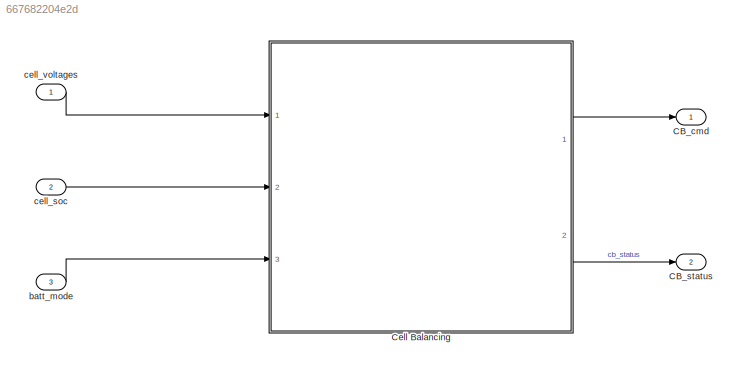
MODEL slx_667682204e2d
KIND model
CONFIG AbsTol = auto
CONFIG FixedStep = 0.01
CONFIG MaxStep = auto
CONFIG MinStep = auto
CONFIG RelTol = 1e-3
CONFIG SampleTimeConstraint = Unconstrained
CONFIG Solver = FixedStepAuto
CONFIG SolverMode = Auto
CONFIG SolverName = FixedStepAuto
CONFIG StartTime = 0.0
CONFIG StopTime = inf
BLOCK [Outport] CB_cmd
  IconDisplay = Port number
BLOCK [Outport] CB_status
  IconDisplay = Port number
  Port = 2
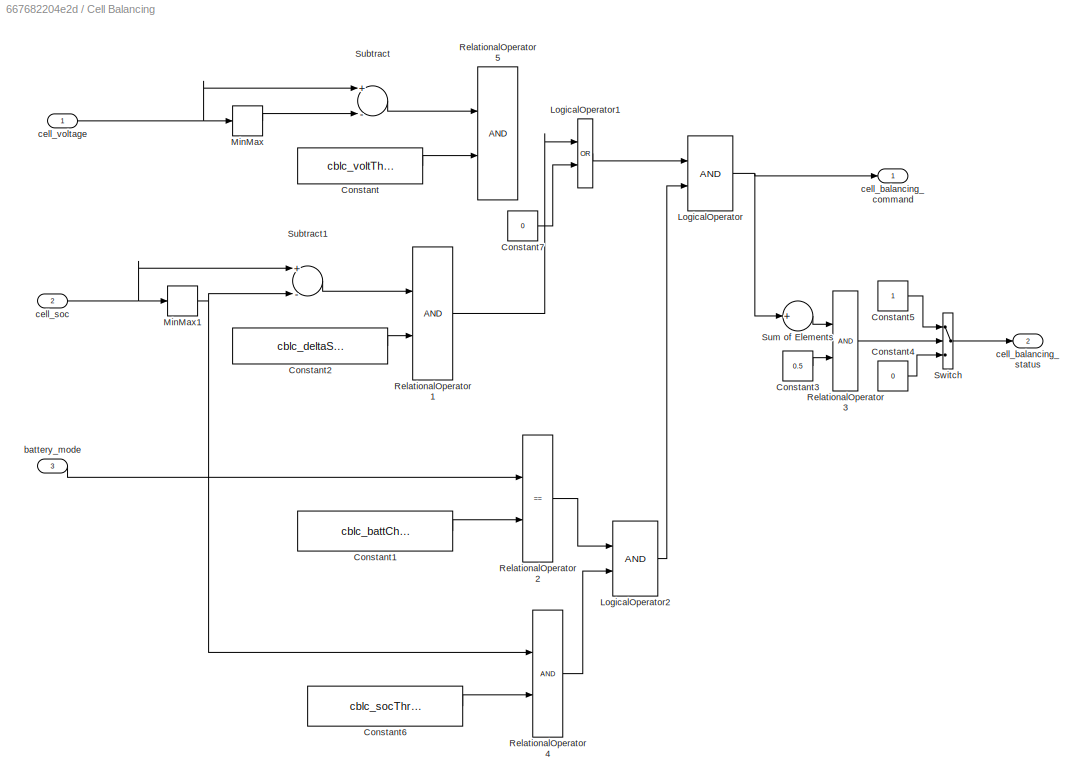
BLOCK [SubSystem] Cell Balancing
  Ports = [3, 2]
  RequestExecContextInheritance = off
  TreatAsAtomicUnit = on
  Variant = off
BLOCK [Constant] Cell Balancing/Constant
  Value = cblc_voltThreshBalance
BLOCK [Constant] Cell Balancing/Constant1
  Value = cblc_battChargingMode
BLOCK [Constant] Cell Balancing/Constant2
  Value = cblc_deltaSocThreshBalance
BLOCK [Constant] Cell Balancing/Constant3
  Value = 0.5
BLOCK [Constant] Cell Balancing/Constant4
  OutDataTypeStr = boolean
  Value = 0
BLOCK [Constant] Cell Balancing/Constant5
  OutDataTypeStr = boolean
BLOCK [Constant] Cell Balancing/Constant6
  Value = cblc_socThreshBalance
BLOCK [Constant] Cell Balancing/Constant7
  Value = 0
BLOCK [Logic] Cell Balancing/LogicalOperator
  AllPortsSameDT = off
  OutDataTypeStr = boolean
  Ports = [2, 1]
BLOCK [Logic] Cell Balancing/LogicalOperator1
  AllPortsSameDT = off
  Operator = OR
  OutDataTypeStr = boolean
  Ports = [2, 1]
BLOCK [Logic] Cell Balancing/LogicalOperator2
  AllPortsSameDT = off
  OutDataTypeStr = boolean
  Ports = [2, 1]
BLOCK [MinMax] Cell Balancing/MinMax
  InputSameDT = off
  Ports = [1, 1]
  SaturateOnIntegerOverflow = off
BLOCK [MinMax] Cell Balancing/MinMax1
  InputSameDT = off
  Ports = [1, 1]
  SaturateOnIntegerOverflow = off
BLOCK [RelationalOperator] Cell Balancing/RelationalOperator1
  InputSameDT = off
  OutDataTypeStr = boolean
  Ports = [2, 1]
BLOCK [RelationalOperator] Cell Balancing/RelationalOperator2
  InputSameDT = off
  Operator = ==
  OutDataTypeStr = boolean
  Ports = [2, 1]
BLOCK [RelationalOperator] Cell Balancing/RelationalOperator3
  InputSameDT = off
  OutDataTypeStr = boolean
  Ports = [2, 1]
BLOCK [RelationalOperator] Cell Balancing/RelationalOperator4
  InputSameDT = off
  OutDataTypeStr = boolean
  Ports = [2, 1]
BLOCK [RelationalOperator] Cell Balancing/RelationalOperator5
  InputSameDT = off
  OutDataTypeStr = boolean
  Ports = [2, 1]
BLOCK [Sum] Cell Balancing/Subtract
  InputSameDT = off
  Inputs = +-
  OutDataTypeStr = Inherit: Inherit via internal rule
  Ports = [2, 1]
  SaturateOnIntegerOverflow = off
BLOCK [Sum] Cell Balancing/Subtract1
  InputSameDT = off
  Inputs = +-
  OutDataTypeStr = Inherit: Inherit via internal rule
  Ports = [2, 1]
  SaturateOnIntegerOverflow = off
BLOCK [Sum] Cell Balancing/Sum of Elements
  InputSameDT = off
  Inputs = +
  OutDataTypeStr = Inherit: Inherit via internal rule
  Ports = [1, 1]
  SaturateOnIntegerOverflow = off
BLOCK [Switch] Cell Balancing/Switch
  Criteria = u2 > Threshold
  InputSameDT = off
  SaturateOnIntegerOverflow = off
  Threshold = 0.5
BLOCK [Inport] Cell Balancing/battery_mode
  IconDisplay = Port number
  Port = 3
BLOCK [Outport] Cell Balancing/cell_balancing_command
  IconDisplay = Port number
BLOCK [Outport] Cell Balancing/cell_balancing_status
  IconDisplay = Port number
  Port = 2
BLOCK [Inport] Cell Balancing/cell_soc
  IconDisplay = Port number
  Port = 2
  PortDimensions = 40
BLOCK [Inport] Cell Balancing/cell_voltage
  IconDisplay = Port number
  PortDimensions = 40
BLOCK [Inport] batt_mode
  IconDisplay = Port number
  OutDataTypeStr = uint8
  Port = 3
BLOCK [Inport] cell_soc
  IconDisplay = Port number
  Port = 2
BLOCK [Inport] cell_voltages
  IconDisplay = Port number
LINE Cell Balancing/Constant1:1 -> Cell Balancing/RelationalOperator2:2
LINE Cell Balancing/Constant2:1 -> Cell Balancing/RelationalOperator1:2
LINE Cell Balancing/Constant3:1 -> Cell Balancing/RelationalOperator3:2
LINE Cell Balancing/Constant4:1 -> Cell Balancing/Switch:3
LINE Cell Balancing/Constant5:1 -> Cell Balancing/Switch:1
LINE Cell Balancing/Constant6:1 -> Cell Balancing/RelationalOperator4:2
LINE Cell Balancing/Constant7:1 -> Cell Balancing/LogicalOperator1:2
LINE Cell Balancing/Constant:1 -> Cell Balancing/RelationalOperator5:2
LINE Cell Balancing/LogicalOperator1:1 -> Cell Balancing/LogicalOperator:1
LINE Cell Balancing/LogicalOperator2:1 -> Cell Balancing/LogicalOperator:2
NET Cell Balancing/LogicalOperator:1 -> Cell Balancing/Sum of Elements:1, Cell Balancing/cell_balancing_command:1
NET Cell Balancing/MinMax1:1 -> Cell Balancing/RelationalOperator4:1, Cell Balancing/Subtract1:2
LINE Cell Balancing/MinMax:1 -> Cell Balancing/Subtract:2
LINE Cell Balancing/RelationalOperator1:1 -> Cell Balancing/LogicalOperator1:1
LINE Cell Balancing/RelationalOperator2:1 -> Cell Balancing/LogicalOperator2:1
LINE Cell Balancing/RelationalOperator3:1 -> Cell Balancing/Switch:2
LINE Cell Balancing/RelationalOperator4:1 -> Cell Balancing/LogicalOperator2:2
LINE Cell Balancing/Subtract1:1 -> Cell Balancing/RelationalOperator1:1
LINE Cell Balancing/Subtract:1 -> Cell Balancing/RelationalOperator5:1
LINE Cell Balancing/Sum of Elements:1 -> Cell Balancing/RelationalOperator3:1
LINE Cell Balancing/Switch:1 -> Cell Balancing/cell_balancing_status:1
LINE Cell Balancing/battery_mode:1 -> Cell Balancing/RelationalOperator2:1
NET Cell Balancing/cell_soc:1 -> Cell Balancing/MinMax1:1, Cell Balancing/Subtract1:1
NET Cell Balancing/cell_voltage:1 -> Cell Balancing/MinMax:1, Cell Balancing/Subtract:1
LINE Cell Balancing:1 -> CB_cmd:1
LINE Cell Balancing:2 -> CB_status:1
LINE batt_mode:1 -> Cell Balancing:3
LINE cell_soc:1 -> Cell Balancing:2
LINE cell_voltages:1 -> Cell Balancing:1
note: NET lines group one-source signal fan-out (src -> all destinations, sorted); 1:1 wires keep LINE
